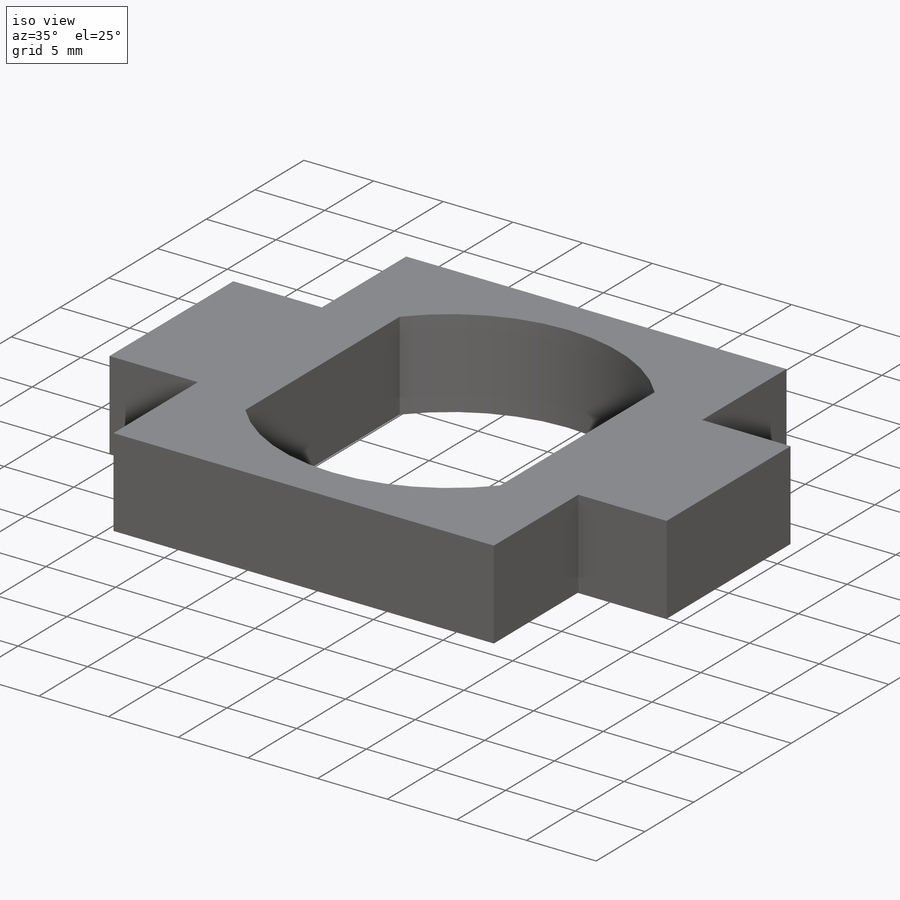
[diagram: iso view]
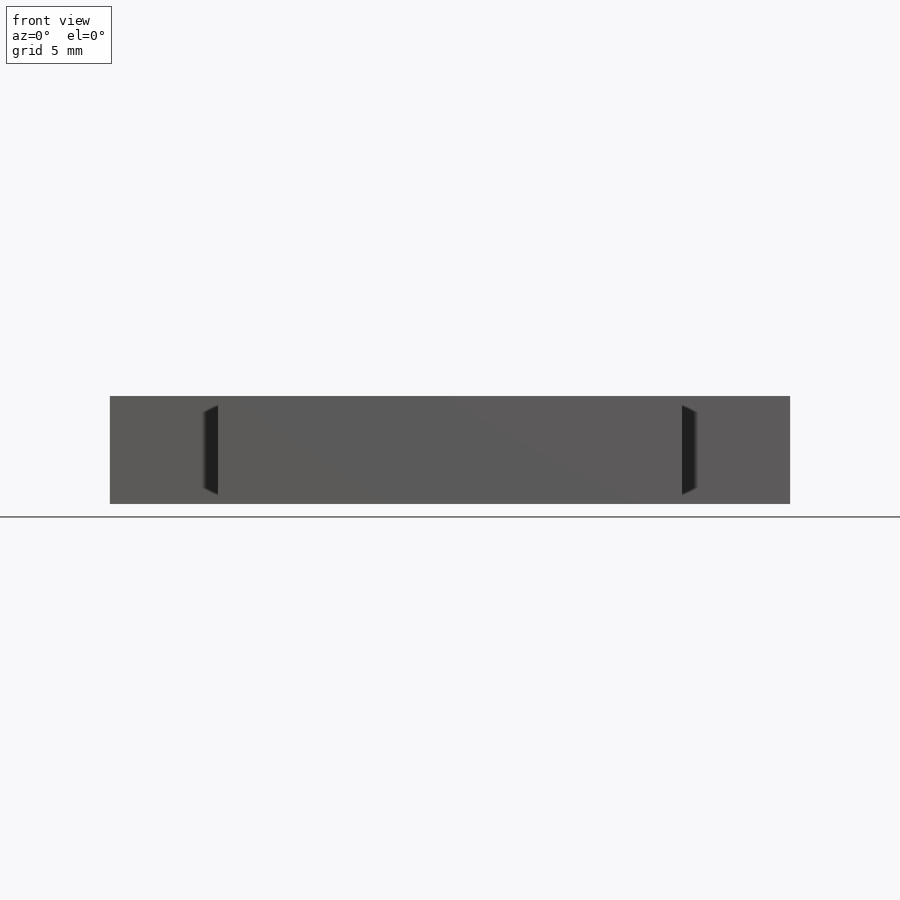
[diagram: front view]
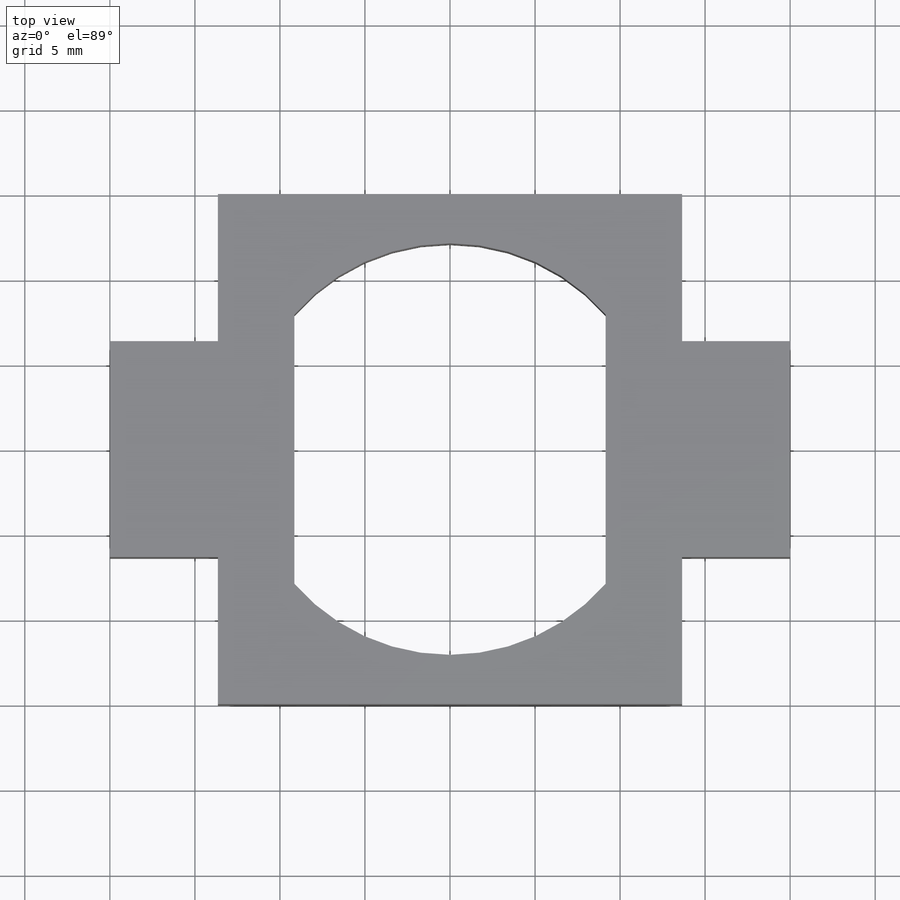
[diagram: top view]
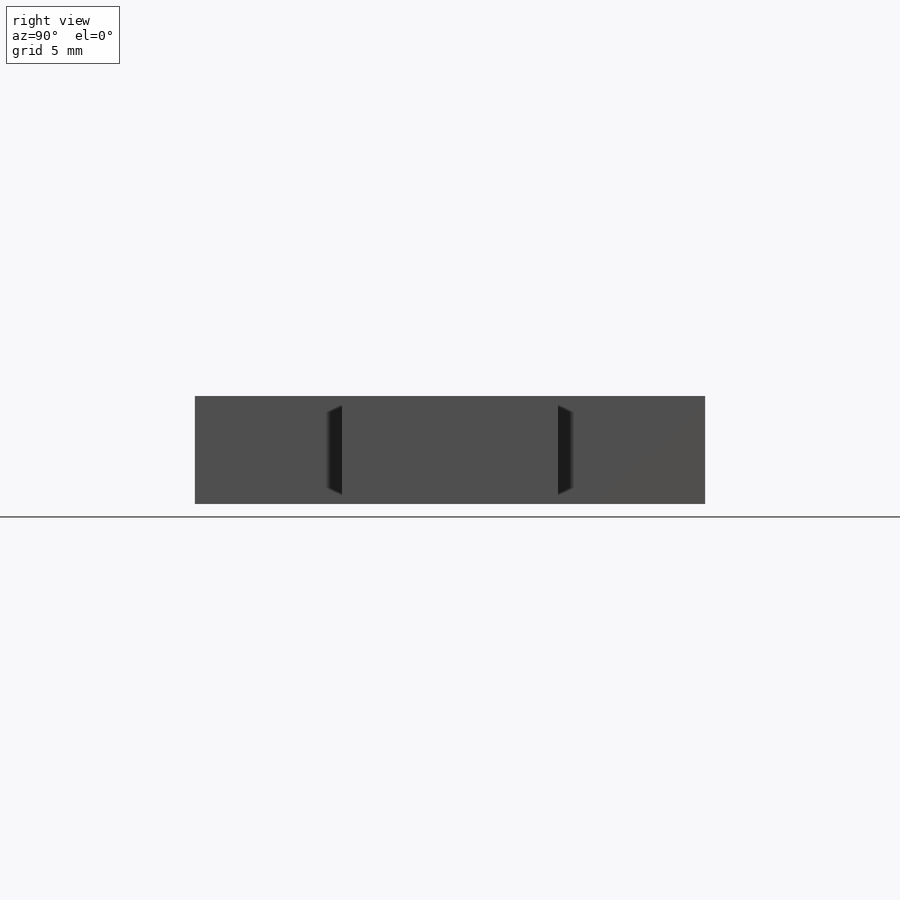
[diagram: right view]
SOLIDWORKS PART (.sldprt)
format: sldprt  version: not decoded by parser v0  size: 185,856 bytes
history: native  units: mm
features: sketch x3, extrude x2, material x1, mirror x1, cut_extrude x1 (+13 scaffold rows collapsed)
feature tree (21):
  scaffold x13  (default folders/planes/origin — collapsed)
  material  "Acrylic (Medium-high impact)"
  sketch  "Sketch1"  dims[c1.D1=73.7273mm c1.D2=~146.956443mm c2.D1=30.0mm c2.D2=27.3mm]
  extrude  "Boss-Extrude1"  Depth=6.35mm
  sketch  "Sketch2"  dims[c1.D1=~3.022868mm c1.D2=~3.946522mm c2.D1=0.0mm c2.D2=0.0mm c2.D3=12.7mm c2.D4=15.0mm]
  extrude  "Boss-Extrude2"  Depth=6.35mm
  mirror  "Mirror1"
  sketch  "Sketch3"  dims[c1.D1=24.2mm c1.D2=~13.814763mm c1.D3=~19.869381mm c2.D2=18.3mm]
  cut_extrude  "Cut-Extrude1"  [1 undecoded]
decode coverage: 5 of 7 modeling features carry decoded parameters
note: ~ marks probable driven/reference dimensions
note: 1 parameter value undecoded
note: suppression state not decoded; provenance and decode notes live in map.json
